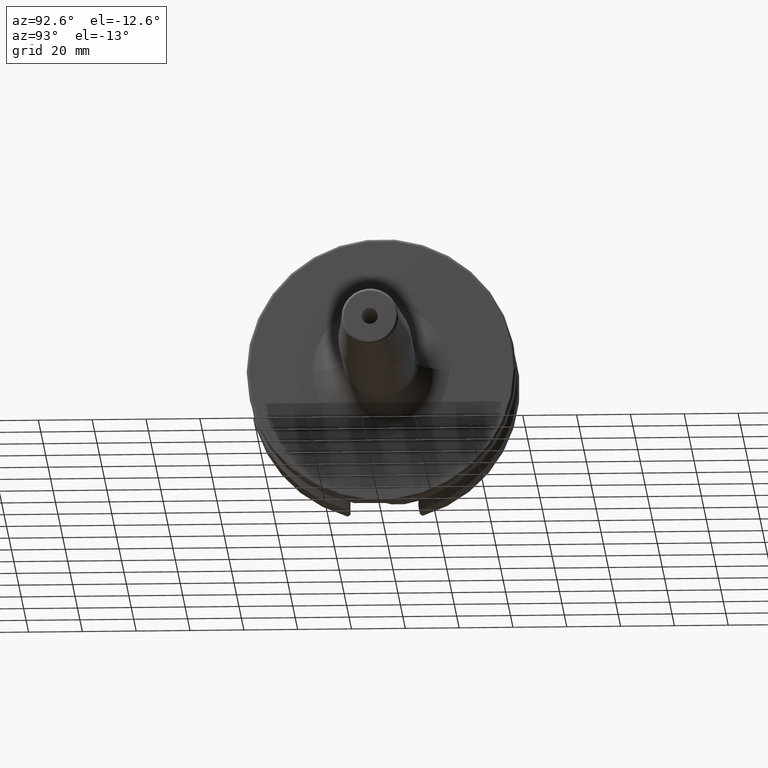
[diagram: clean part render]
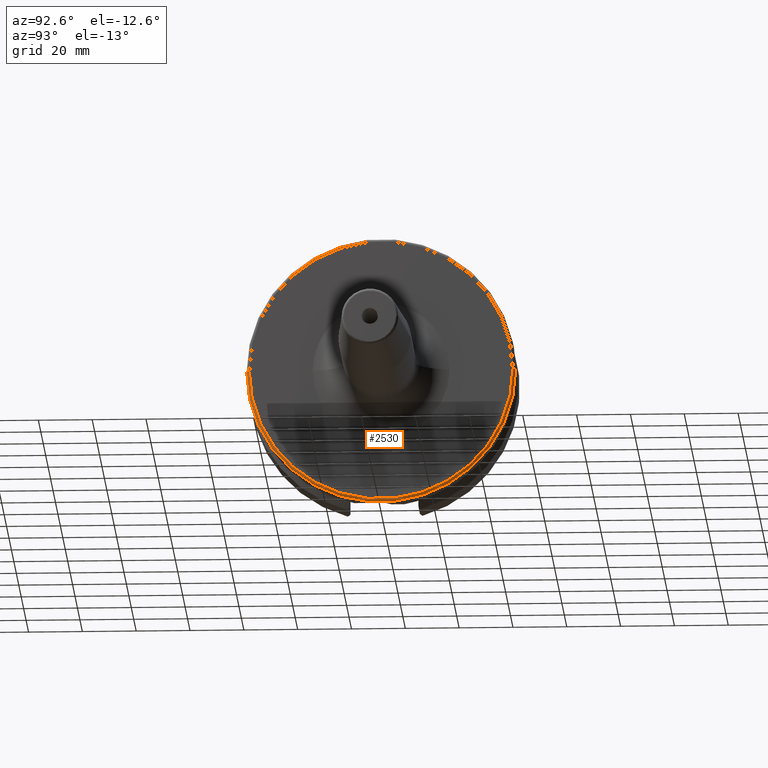
[diagram: same view with one face highlighted and labeled with its STEP entity id]
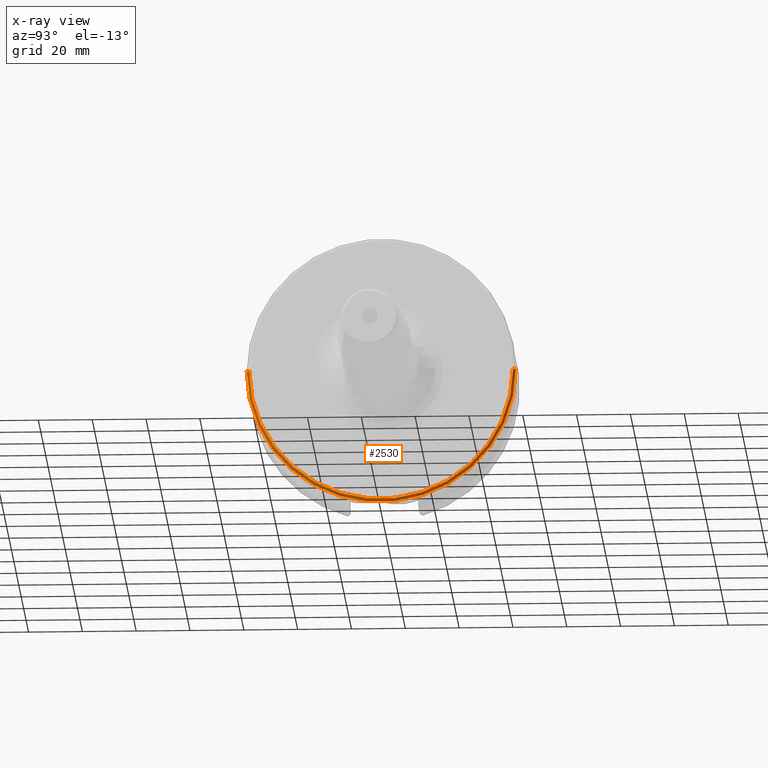
[diagram: x-ray of the same camera — body ghosted, the highlighted face saturated]
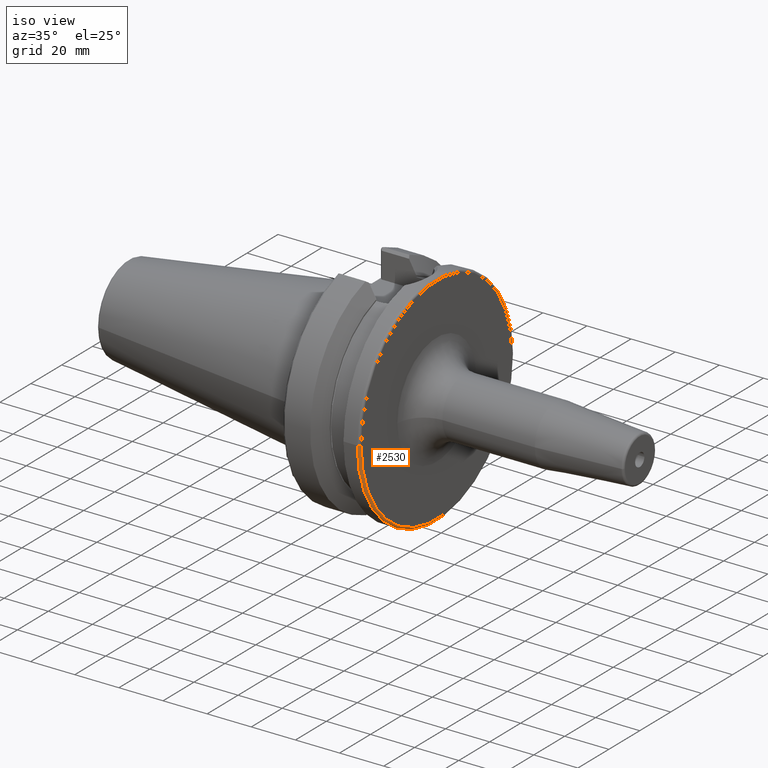
[diagram: same view with one face highlighted and labeled with its STEP entity id]
A machine part, auxiliary view. The second image highlights one B-rep face of the part: STEP entity #2530.
The next image is the same camera in x-ray: the body ghosted, the highlighted face saturated — about 0% of this face is hidden behind the body in this view.
A second angle (iso view) of the same face is appended — the face is thin or edge-on in the first view.
In plain terms, the highlighted toroidal blend (fillet) surface has major radius 48.9875 mm and minor (blend) radius 1 mm.
Its self-contained STEP definition (entity closure, byte-faithful):
#254=CARTESIAN_POINT('',(3.7E1,0.E0,0.E0));
#255=DIRECTION('',(-1.E0,0.E0,0.E0));
#256=DIRECTION('',(0.E0,1.E0,0.E0));
#257=AXIS2_PLACEMENT_3D('',#254,#255,#256);
#819=CARTESIAN_POINT('',(3.7E1,4.89875E1,0.E0));
#820=DIRECTION('',(0.E0,0.E0,1.E0));
#821=DIRECTION('',(1.E0,0.E0,0.E0));
#822=AXIS2_PLACEMENT_3D('',#819,#820,#821);
#824=CARTESIAN_POINT('',(3.7E1,-4.89875E1,-1.199847701465E-14));
#825=DIRECTION('',(0.E0,0.E0,-1.E0));
#826=DIRECTION('',(1.E0,0.E0,0.E0));
#827=AXIS2_PLACEMENT_3D('',#824,#825,#826);
#829=CARTESIAN_POINT('',(3.8E1,0.E0,0.E0));
#830=DIRECTION('',(-1.E0,0.E0,0.E0));
#831=DIRECTION('',(0.E0,1.E0,0.E0));
#832=AXIS2_PLACEMENT_3D('',#829,#830,#831);
#1232=CARTESIAN_POINT('',(3.7E1,4.99875E1,0.E0));
#1233=VERTEX_POINT('',#1232);
#1234=CARTESIAN_POINT('',(3.7E1,-4.99875E1,0.E0));
#1235=VERTEX_POINT('',#1234);
#1302=CARTESIAN_POINT('',(3.8E1,4.89875E1,0.E0));
#1303=VERTEX_POINT('',#1302);
#1304=CARTESIAN_POINT('',(3.8E1,-4.89875E1,-1.199847701465E-14));
#1305=VERTEX_POINT('',#1304);
#2518=CARTESIAN_POINT('',(3.7E1,0.E0,0.E0));
#2519=DIRECTION('',(1.E0,0.E0,0.E0));
#2520=DIRECTION('',(0.E0,-1.E0,0.E0));
#2521=AXIS2_PLACEMENT_3D('',#2518,#2519,#2520);
#2522=TOROIDAL_SURFACE('',#2521,4.89875E1,1.E0);
#2523=ORIENTED_EDGE('',*,*,#2508,.T.);
#2524=ORIENTED_EDGE('',*,*,#1757,.T.);
#2525=ORIENTED_EDGE('',*,*,#2512,.F.);
#2527=ORIENTED_EDGE('',*,*,#2526,.F.);
#2528=EDGE_LOOP('',(#2523,#2524,#2525,#2527));
#2529=FACE_OUTER_BOUND('',#2528,.F.);
#2530=ADVANCED_FACE('',(#2529),#2522,.T.);
#258=CIRCLE('',#257,4.99875E1);
#823=CIRCLE('',#822,1.E0);
#828=CIRCLE('',#827,1.E0);
#833=CIRCLE('',#832,4.89875E1);
#1757=EDGE_CURVE('',#1233,#1235,#258,.T.);
#2508=EDGE_CURVE('',#1303,#1233,#823,.T.);
#2512=EDGE_CURVE('',#1305,#1235,#828,.T.);
#2526=EDGE_CURVE('',#1303,#1305,#833,.T.);